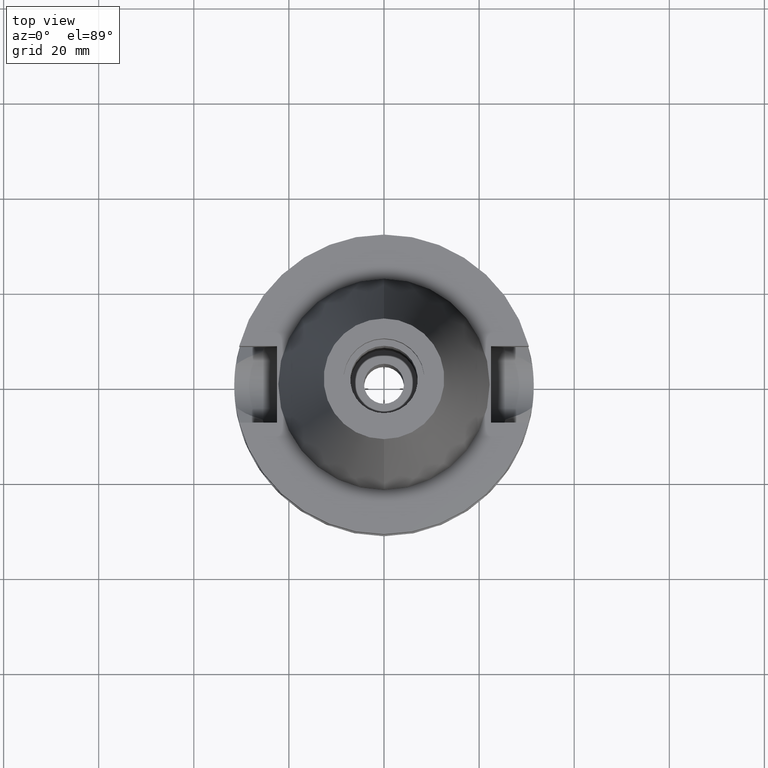
[diagram: clean part render]
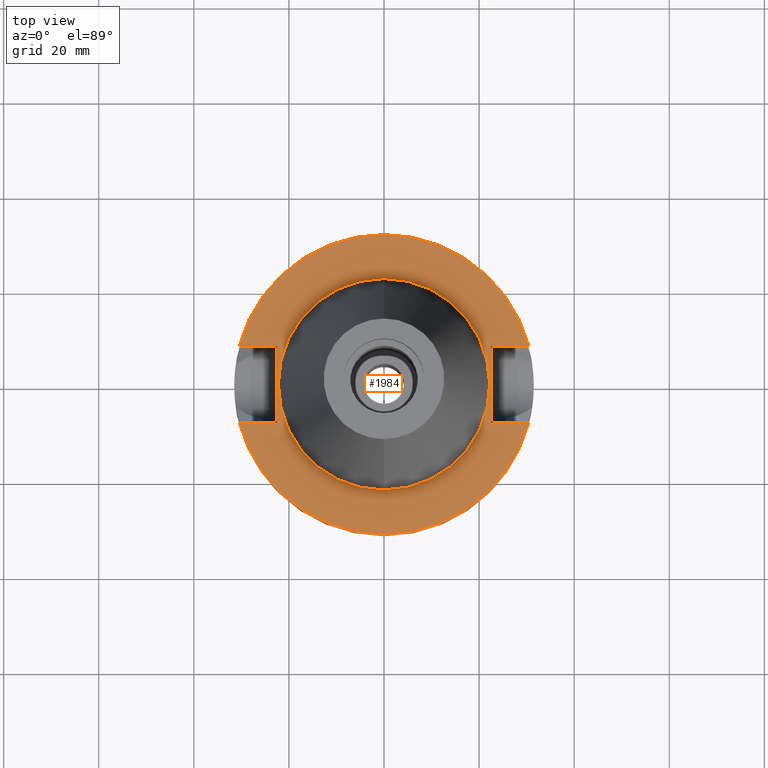
[diagram: same view with one face highlighted and labeled with its STEP entity id]
A machine part, top view. The second image highlights one B-rep face of the part: STEP entity #1984.
In plain terms, the highlighted planar face has unit normal (0, 0, -1).
Its self-contained STEP definition (entity closure, byte-faithful):
#13 = EDGE_CURVE ( 'NONE', #670, #55, #1016, .T. ) ;
#40 = CARTESIAN_POINT ( 'NONE',  ( 30.45402272279000044, 8.050000000000000711, -1.000000000000000000 ) ) ;
#55 = VERTEX_POINT ( 'NONE', #613 ) ;
#74 = ORIENTED_EDGE ( 'NONE', *, *, #13, .F. ) ;
#98 = DIRECTION ( 'NONE',  ( 1.000000000000000000, -3.550916904668000126E-14, 0.0000000000000000000 ) ) ;
#100 = CIRCLE ( 'NONE', #398, 31.50000000000000000 ) ;
#158 = EDGE_LOOP ( 'NONE', ( #684, #2327 ) ) ;
#249 = CIRCLE ( 'NONE', #1564, 22.22500000000000142 ) ;
#351 = DIRECTION ( 'NONE',  ( 0.0000000000000000000, -1.000000000000000000, 0.0000000000000000000 ) ) ;
#398 = AXIS2_PLACEMENT_3D ( 'NONE', #866, #1123, #1816 ) ;
#435 = CARTESIAN_POINT ( 'NONE',  ( 0.0000000000000000000, 0.0000000000000000000, -1.000000000000000000 ) ) ;
#442 = VECTOR ( 'NONE', #98, 1000.000000000000000 ) ;
#451 = VECTOR ( 'NONE', #1829, 1000.000000000000000 ) ;
#491 = VERTEX_POINT ( 'NONE', #1247 ) ;
#500 = AXIS2_PLACEMENT_3D ( 'NONE', #435, #2514, #2703 ) ;
#506 = EDGE_CURVE ( 'NONE', #1383, #974, #249, .T. ) ;
#524 = LINE ( 'NONE', #2523, #1571 ) ;
#572 = VERTEX_POINT ( 'NONE', #1972 ) ;
#613 = CARTESIAN_POINT ( 'NONE',  ( -22.50000000000000000, -8.050000000000000711, -1.000000000000000000 ) ) ;
#621 = DIRECTION ( 'NONE',  ( 0.0000000000000000000, 0.0000000000000000000, 1.000000000000000000 ) ) ;
#641 = LINE ( 'NONE', #2292, #2879 ) ;
#670 = VERTEX_POINT ( 'NONE', #1574 ) ;
#684 = ORIENTED_EDGE ( 'NONE', *, *, #1199, .F. ) ;
#693 = CARTESIAN_POINT ( 'NONE',  ( 0.0000000000000000000, 0.0000000000000000000, -1.000000000000000000 ) ) ;
#731 = FACE_OUTER_BOUND ( 'NONE', #2712, .T. ) ;
#757 = VECTOR ( 'NONE', #1403, 1000.000000000000000 ) ;
#817 = ORIENTED_EDGE ( 'NONE', *, *, #2401, .F. ) ;
#864 = CARTESIAN_POINT ( 'NONE',  ( 0.0000000000000000000, 22.22500000000000142, -1.000000000000000000 ) ) ;
#866 = CARTESIAN_POINT ( 'NONE',  ( 0.0000000000000000000, 0.0000000000000000000, -1.000000000000000000 ) ) ;
#951 = ORIENTED_EDGE ( 'NONE', *, *, #2763, .F. ) ;
#974 = VERTEX_POINT ( 'NONE', #864 ) ;
#975 = LINE ( 'NONE', #1628, #757 ) ;
#1005 = DIRECTION ( 'NONE',  ( 0.0000000000000000000, 0.0000000000000000000, -1.000000000000000000 ) ) ;
#1016 = LINE ( 'NONE', #1927, #442 ) ;
#1081 = VERTEX_POINT ( 'NONE', #1769 ) ;
#1123 = DIRECTION ( 'NONE',  ( 0.0000000000000000000, 0.0000000000000000000, -1.000000000000000000 ) ) ;
#1153 = LINE ( 'NONE', #2354, #1858 ) ;
#1177 = CIRCLE ( 'NONE', #1851, 31.50000000000000000 ) ;
#1199 = EDGE_CURVE ( 'NONE', #974, #1383, #1418, .T. ) ;
#1208 = DIRECTION ( 'NONE',  ( 1.000000000000000000, -3.506251283225999947E-14, 0.0000000000000000000 ) ) ;
#1247 = CARTESIAN_POINT ( 'NONE',  ( 22.50000000000000000, -8.050000000000000711, -1.000000000000000000 ) ) ;
#1291 = CARTESIAN_POINT ( 'NONE',  ( 0.0000000000000000000, 0.0000000000000000000, -1.000000000000000000 ) ) ;
#1358 = EDGE_CURVE ( 'NONE', #2338, #3006, #100, .T. ) ;
#1383 = VERTEX_POINT ( 'NONE', #2986 ) ;
#1403 = DIRECTION ( 'NONE',  ( 1.000000000000000000, 3.550916904668000126E-14, 0.0000000000000000000 ) ) ;
#1418 = CIRCLE ( 'NONE', #500, 22.22500000000000142 ) ;
#1449 = CARTESIAN_POINT ( 'NONE',  ( 0.0000000000000000000, 0.0000000000000000000, -1.000000000000000000 ) ) ;
#1482 = EDGE_CURVE ( 'NONE', #1081, #3006, #1153, .T. ) ;
#1503 = ORIENTED_EDGE ( 'NONE', *, *, #1952, .T. ) ;
#1540 = LINE ( 'NONE', #2962, #451 ) ;
#1564 = AXIS2_PLACEMENT_3D ( 'NONE', #1291, #621, #2899 ) ;
#1571 = VECTOR ( 'NONE', #1914, 1000.000000000000000 ) ;
#1574 = CARTESIAN_POINT ( 'NONE',  ( -30.45402272279000044, -8.050000000000000711, -1.000000000000000000 ) ) ;
#1585 = ORIENTED_EDGE ( 'NONE', *, *, #1793, .F. ) ;
#1614 = DIRECTION ( 'NONE',  ( 0.0000000000000000000, 0.0000000000000000000, -1.000000000000000000 ) ) ;
#1628 = CARTESIAN_POINT ( 'NONE',  ( -30.45402272279000044, 8.050000000000000711, -1.000000000000000000 ) ) ;
#1657 = FACE_BOUND ( 'NONE', #158, .T. ) ;
#1769 = CARTESIAN_POINT ( 'NONE',  ( 22.50000000000000000, 8.050000000000000711, -1.000000000000000000 ) ) ;
#1775 = ORIENTED_EDGE ( 'NONE', *, *, #1358, .F. ) ;
#1793 = EDGE_CURVE ( 'NONE', #55, #1823, #1540, .T. ) ;
#1816 = DIRECTION ( 'NONE',  ( 0.0000000000000000000, 1.000000000000000000, 0.0000000000000000000 ) ) ;
#1823 = VERTEX_POINT ( 'NONE', #1995 ) ;
#1829 = DIRECTION ( 'NONE',  ( 0.0000000000000000000, 1.000000000000000000, 0.0000000000000000000 ) ) ;
#1851 = AXIS2_PLACEMENT_3D ( 'NONE', #693, #1614, #2054 ) ;
#1858 = VECTOR ( 'NONE', #1208, 1000.000000000000000 ) ;
#1914 = DIRECTION ( 'NONE',  ( 0.0000000000000000000, -1.000000000000000000, 0.0000000000000000000 ) ) ;
#1927 = CARTESIAN_POINT ( 'NONE',  ( -30.45402272279000044, -8.050000000000000711, -1.000000000000000000 ) ) ;
#1952 = EDGE_CURVE ( 'NONE', #2338, #1823, #975, .T. ) ;
#1972 = CARTESIAN_POINT ( 'NONE',  ( 30.45402272279000044, -8.050000000000000711, -1.000000000000000000 ) ) ;
#1984 = ADVANCED_FACE ( 'NONE', ( #731, #1657 ), #2123, .F. ) ;
#1995 = CARTESIAN_POINT ( 'NONE',  ( -22.50000000000000000, 8.050000000000000711, -1.000000000000000000 ) ) ;
#2054 = DIRECTION ( 'NONE',  ( 0.0000000000000000000, -1.000000000000000000, 0.0000000000000000000 ) ) ;
#2092 = ORIENTED_EDGE ( 'NONE', *, *, #2690, .F. ) ;
#2123 = PLANE ( 'NONE',  #2437 ) ;
#2292 = CARTESIAN_POINT ( 'NONE',  ( 22.50000000000000000, -8.050000000000000711, -1.000000000000000000 ) ) ;
#2314 = CARTESIAN_POINT ( 'NONE',  ( -30.45402272279000044, 8.050000000000000711, -1.000000000000000000 ) ) ;
#2327 = ORIENTED_EDGE ( 'NONE', *, *, #506, .F. ) ;
#2338 = VERTEX_POINT ( 'NONE', #2314 ) ;
#2354 = CARTESIAN_POINT ( 'NONE',  ( 22.50000000000000000, 8.050000000000000711, -1.000000000000000000 ) ) ;
#2401 = EDGE_CURVE ( 'NONE', #1081, #491, #524, .T. ) ;
#2437 = AXIS2_PLACEMENT_3D ( 'NONE', #1449, #1005, #351 ) ;
#2514 = DIRECTION ( 'NONE',  ( 0.0000000000000000000, 0.0000000000000000000, 1.000000000000000000 ) ) ;
#2523 = CARTESIAN_POINT ( 'NONE',  ( 22.50000000000000000, 8.050000000000000711, -1.000000000000000000 ) ) ;
#2541 = ORIENTED_EDGE ( 'NONE', *, *, #1482, .T. ) ;
#2690 = EDGE_CURVE ( 'NONE', #491, #572, #641, .T. ) ;
#2703 = DIRECTION ( 'NONE',  ( 0.0000000000000000000, 1.000000000000000000, 0.0000000000000000000 ) ) ;
#2712 = EDGE_LOOP ( 'NONE', ( #74, #951, #2092, #817, #2541, #1775, #1503, #1585 ) ) ;
#2763 = EDGE_CURVE ( 'NONE', #572, #670, #1177, .T. ) ;
#2879 = VECTOR ( 'NONE', #3002, 1000.000000000000000 ) ;
#2899 = DIRECTION ( 'NONE',  ( 0.0000000000000000000, -1.000000000000000000, 0.0000000000000000000 ) ) ;
#2962 = CARTESIAN_POINT ( 'NONE',  ( -22.50000000000000000, -8.050000000000000711, -1.000000000000000000 ) ) ;
#2986 = CARTESIAN_POINT ( 'NONE',  ( 0.0000000000000000000, -22.22500000000000142, -1.000000000000000000 ) ) ;
#3002 = DIRECTION ( 'NONE',  ( 1.000000000000000000, 3.595582526110999949E-14, 0.0000000000000000000 ) ) ;
#3006 = VERTEX_POINT ( 'NONE', #40 ) ;